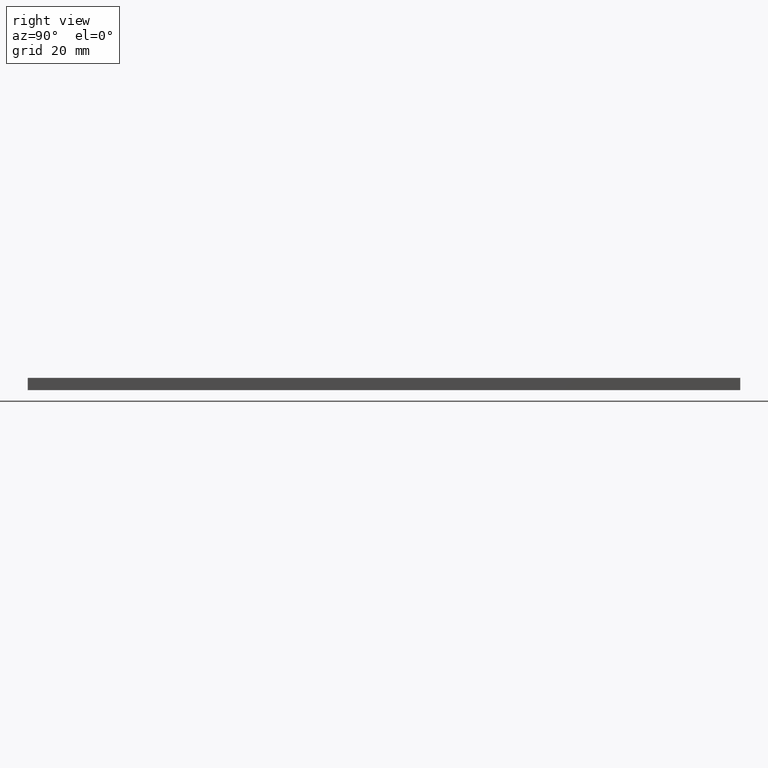
[diagram: clean part render]
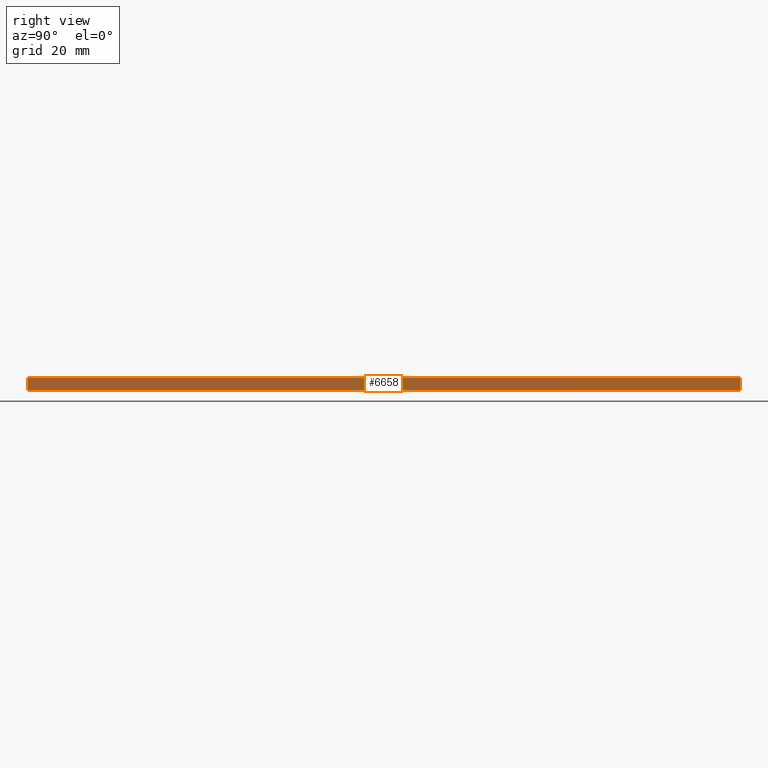
[diagram: same view with one face highlighted and labeled with its STEP entity id]
A machine part, right view. The second image highlights one B-rep face of the part: STEP entity #6658.
In plain terms, the highlighted planar face has unit normal (-1, 0, 0).
Its self-contained STEP definition (entity closure, byte-faithful):
#669 = DIRECTION ( 'NONE',  ( -0.000000000000000000, 1.000000000000000000, -0.000000000000000000 ) ) ;
#898 = ORIENTED_EDGE ( 'NONE', *, *, #6072, .F. ) ;
#1268 = CARTESIAN_POINT ( 'NONE',  ( 20.00000000000000355, 86.50000000000000000, 0.000000000000000000 ) ) ;
#2369 = LINE ( 'NONE', #7887, #9452 ) ;
#3222 = CARTESIAN_POINT ( 'NONE',  ( 20.00000000000000355, -86.50000000000000000, 3.000000000000000000 ) ) ;
#4281 = VERTEX_POINT ( 'NONE', #4304 ) ;
#4304 = CARTESIAN_POINT ( 'NONE',  ( 20.00000000000000355, -86.50000000000000000, 0.000000000000000000 ) ) ;
#4372 = DIRECTION ( 'NONE',  ( -0.000000000000000000, -0.000000000000000000, -1.000000000000000000 ) ) ;
#4377 = LINE ( 'NONE', #1268, #14456 ) ;
#5039 = DIRECTION ( 'NONE',  ( -0.000000000000000000, -0.000000000000000000, -1.000000000000000000 ) ) ;
#5274 = LINE ( 'NONE', #13258, #8296 ) ;
#5944 = DIRECTION ( 'NONE',  ( -0.000000000000000000, 1.000000000000000000, -0.000000000000000000 ) ) ;
#6072 = EDGE_CURVE ( 'NONE', #13270, #14648, #2369, .T. ) ;
#6403 = ORIENTED_EDGE ( 'NONE', *, *, #12890, .F. ) ;
#6567 = CARTESIAN_POINT ( 'NONE',  ( 20.00000000000000355, 86.50000000000000000, 3.000000000000000000 ) ) ;
#6658 = ADVANCED_FACE ( 'NONE', ( #11637 ), #15390, .F. ) ;
#6896 = EDGE_CURVE ( 'NONE', #4281, #11259, #4377, .T. ) ;
#7887 = CARTESIAN_POINT ( 'NONE',  ( 20.00000000000000355, 86.50000000000000000, 3.000000000000000000 ) ) ;
#8259 = CARTESIAN_POINT ( 'NONE',  ( 20.00000000000000355, 86.50000000000000000, 3.000000000000000000 ) ) ;
#8296 = VECTOR ( 'NONE', #5039, 1000.000000000000000 ) ;
#8332 = CARTESIAN_POINT ( 'NONE',  ( 20.00000000000000355, -86.50000000000000000, 3.000000000000000000 ) ) ;
#8542 = EDGE_CURVE ( 'NONE', #13270, #4281, #14678, .T. ) ;
#8717 = VECTOR ( 'NONE', #4372, 1000.000000000000000 ) ;
#9452 = VECTOR ( 'NONE', #669, 1000.000000000000000 ) ;
#9471 = DIRECTION ( 'NONE',  ( -1.000000000000000000, 0.000000000000000000, 0.000000000000000000 ) ) ;
#10111 = AXIS2_PLACEMENT_3D ( 'NONE', #8259, #9471, #14084 ) ;
#11173 = EDGE_LOOP ( 'NONE', ( #12131, #6403, #898, #14398 ) ) ;
#11259 = VERTEX_POINT ( 'NONE', #13587 ) ;
#11637 = FACE_OUTER_BOUND ( 'NONE', #11173, .T. ) ;
#12131 = ORIENTED_EDGE ( 'NONE', *, *, #6896, .T. ) ;
#12890 = EDGE_CURVE ( 'NONE', #14648, #11259, #5274, .T. ) ;
#13258 = CARTESIAN_POINT ( 'NONE',  ( 20.00000000000000355, 86.50000000000000000, 3.000000000000000000 ) ) ;
#13270 = VERTEX_POINT ( 'NONE', #8332 ) ;
#13587 = CARTESIAN_POINT ( 'NONE',  ( 20.00000000000000355, 86.50000000000000000, 0.000000000000000000 ) ) ;
#14084 = DIRECTION ( 'NONE',  ( 0.000000000000000000, 0.000000000000000000, 1.000000000000000000 ) ) ;
#14398 = ORIENTED_EDGE ( 'NONE', *, *, #8542, .T. ) ;
#14456 = VECTOR ( 'NONE', #5944, 1000.000000000000000 ) ;
#14648 = VERTEX_POINT ( 'NONE', #6567 ) ;
#14678 = LINE ( 'NONE', #3222, #8717 ) ;
#15390 = PLANE ( 'NONE',  #10111 ) ;